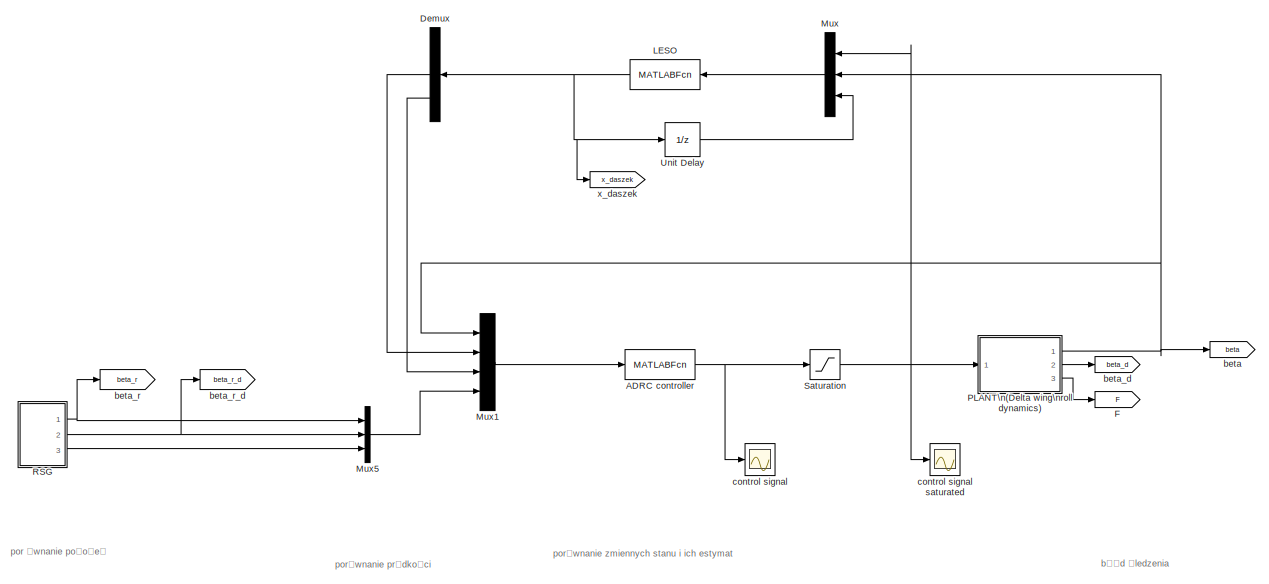
[diagram: root canvas - part 1/2, full width, top band]
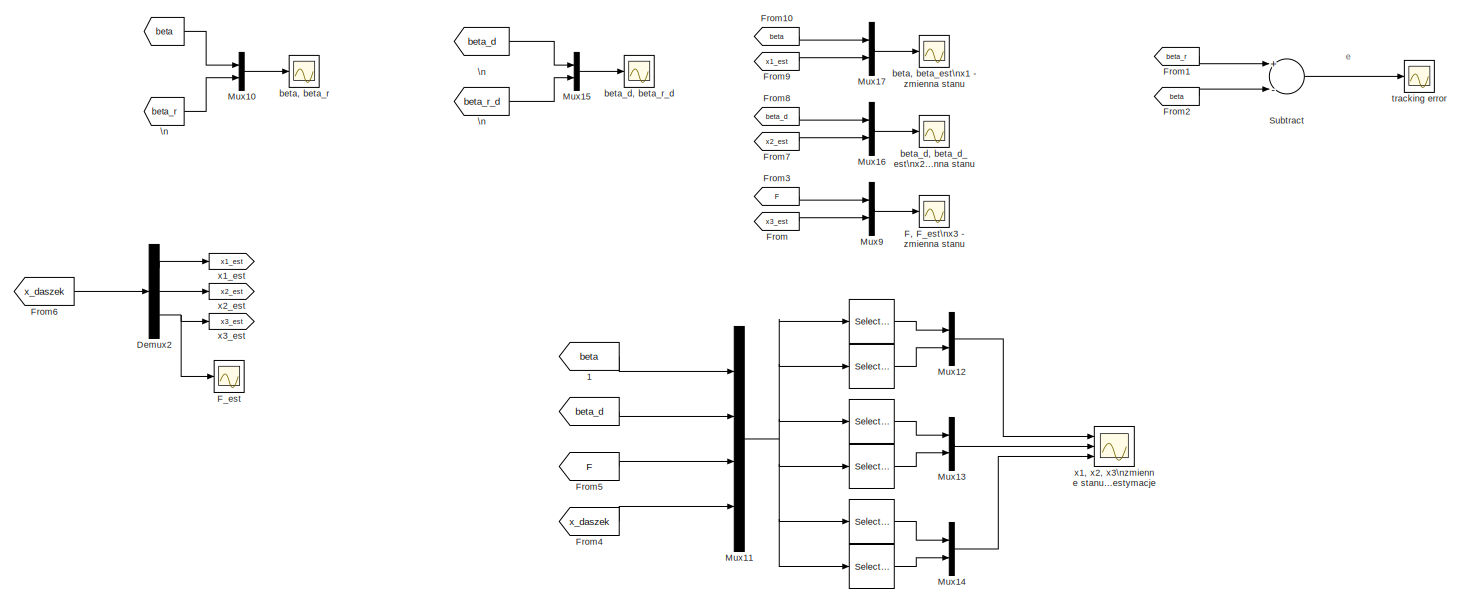
[diagram: root canvas - part 2/2, full width, bottom band]
MODEL DeltaWingPlantADRC_descrete
KIND model
BLOCK [Selector]  
  Commented = on
  IndexOptions = Index vector (dialog)
  Indices = [2]
  InputPortWidth = 6
  OutputSizes = 1
  Ports = [1, 1]
  SID = 127
BLOCK [Selector]        
  Commented = on
  IndexOptions = Index vector (dialog)
  Indices = [4]
  InputPortWidth = 6
  OutputSizes = 1
  Ports = [1, 1]
  SID = 126
BLOCK [Selector]          
  Commented = on
  IndexOptions = Index vector (dialog)
  Indices = [1]
  InputPortWidth = 6
  OutputSizes = 1
  Ports = [1, 1]
  SID = 125
BLOCK [From]                 
  GotoTag = beta
  SID = 118
BLOCK [From]                          
  Commented = on
  GotoTag = beta_d
  SID = 135
BLOCK [Selector]                             
  Commented = on
  IndexOptions = Index vector (dialog)
  Indices = [5]
  InputPortWidth = 6
  OutputSizes = 1
  Ports = [1, 1]
  SID = 128
BLOCK [Selector]                               
  Commented = on
  IndexOptions = Index vector (dialog)
  Indices = [6]
  InputPortWidth = 6
  OutputSizes = 1
  Ports = [1, 1]
  SID = 130
BLOCK [Selector]                                      
  Commented = on
  IndexOptions = Index vector (dialog)
  Indices = [3]
  InputPortWidth = 6
  OutputSizes = 1
  Ports = [1, 1]
  SID = 129
BLOCK [From]                                                        \n
  GotoTag = beta_d
  SID = 155
BLOCK [From]                 1
  Commented = on
  GotoTag = beta
  SID = 137
BLOCK [MATLABFcn] ADRC controller
  MATLABFcn = controller
  Ports = [1, 1]
  SID = 45
BLOCK [Demux] Demux
  DisplayOption = bar
  Outputs = 3
  Ports = [1, 3]
  SID = 53
BLOCK [Demux] Demux2
  DisplayOption = bar
  Outputs = 3
  Ports = [1, 3]
  SID = 143
BLOCK [Goto] F
  GotoTag = F
  SID = 111
BLOCK [Scope] F, F_est\nx3 - zmienna stanu
  Floating = off
  NumInputPorts = 1
  Ports = [1]
  SID = 115
  ScopeSpecificationString = Simulink.scopes.TimeScopeBlockCfg('CurrentConfiguration', extmgr.ConfigurationSet(extmgr.Configuration('Core','General UI',true),extmgr.Configuration('Core','Source UI',true),extmgr.Configuration('Sources','WiredSimulink',true,'DataLoggingVariableName','ScopeData9','DataLoggingSaveFormat','StructureWithTime','DataLoggingDecimation','1','DataLoggingDecimateData',true),extmgr.Configuration('Visuals'...<+1704ch>
BLOCK [Scope] F_est
  Floating = off
  NumInputPorts = 1
  Ports = [1]
  SID = 148
  ScopeSpecificationString = Simulink.scopes.TimeScopeBlockCfg('CurrentConfiguration', extmgr.ConfigurationSet(extmgr.Configuration('Core','General UI',true),extmgr.Configuration('Core','Source UI',true),extmgr.Configuration('Sources','WiredSimulink',true,'DataLoggingVariableName','ScopeData5','DataLoggingSaveFormat','StructureWithTime','DataLoggingDecimation','1','DataLoggingDecimateData',true),extmgr.Configuration('Visuals'...<+1673ch>
BLOCK [From] From
  GotoTag = x3_est
  SID = 147
BLOCK [From] From1
  GotoTag = beta_r
  SID = 100
BLOCK [From] From10
  GotoTag = beta
  SID = 162
BLOCK [From] From2
  GotoTag = beta
  SID = 101
BLOCK [From] From3
  GotoTag = F
  SID = 112
BLOCK [From] From4
  Commented = on
  GotoTag = x_daszek
  SID = 134
BLOCK [From] From5
  Commented = on
  GotoTag = F
  SID = 136
BLOCK [From] From6
  GotoTag = x_daszek
  SID = 142
BLOCK [From] From7
  GotoTag = x2_est
  SID = 157
BLOCK [From] From8
  GotoTag = beta_d
  SID = 158
BLOCK [From] From9
  GotoTag = x1_est
  SID = 161
BLOCK [MATLABFcn] LESO
  MATLABFcn = LESO_descrete
  OutputDimensions = 3
  Ports = [1, 1]
  SID = 49
BLOCK [Mux] Mux
  DisplayOption = bar
  Inputs = 3
  Ports = [3, 1]
  SID = 50
BLOCK [Mux] Mux1
  DisplayOption = bar
  Ports = [4, 1]
  SID = 48
BLOCK [Mux] Mux10
  DisplayOption = bar
  Inputs = 2
  Ports = [2, 1]
  SID = 119
BLOCK [Mux] Mux11
  Commented = on
  DisplayOption = bar
  Ports = [4, 1]
  SID = 133
BLOCK [Mux] Mux12
  Commented = on
  DisplayOption = bar
  Inputs = 2
  Ports = [2, 1]
  SID = 138
BLOCK [Mux] Mux13
  Commented = on
  DisplayOption = bar
  Inputs = 2
  Ports = [2, 1]
  SID = 139
BLOCK [Mux] Mux14
  Commented = on
  DisplayOption = bar
  Inputs = 2
  Ports = [2, 1]
  SID = 140
BLOCK [Mux] Mux15
  DisplayOption = bar
  Inputs = 2
  Ports = [2, 1]
  SID = 152
BLOCK [Mux] Mux16
  DisplayOption = bar
  Inputs = 2
  Ports = [2, 1]
  SID = 159
BLOCK [Mux] Mux17
  DisplayOption = bar
  Inputs = 2
  Ports = [2, 1]
  SID = 163
BLOCK [Mux] Mux5
  DisplayOption = bar
  Inputs = 3
  Ports = [3, 1]
  SID = 1
BLOCK [Mux] Mux9
  DisplayOption = bar
  Inputs = 2
  Ports = [2, 1]
  SID = 114
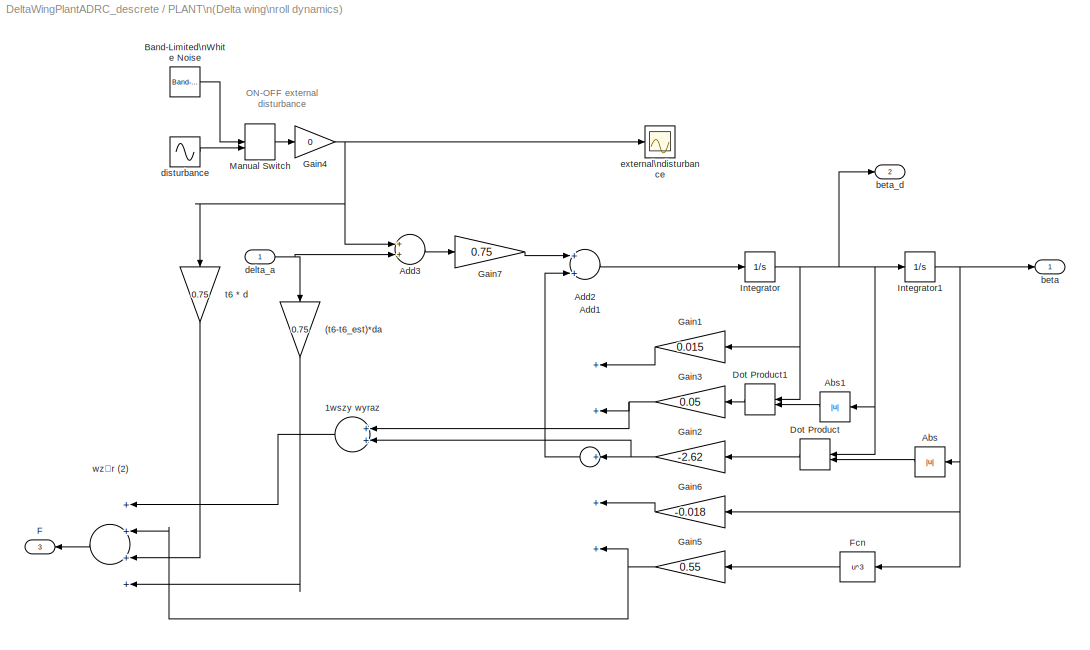
BLOCK [SubSystem] PLANT\n(Delta wing\nroll dynamics)
  Ports = [1, 3]
  RequestExecContextInheritance = off
  SID = 2
BLOCK [Gain] PLANT\n(Delta wing\nroll dynamics)/(t6-t6_est)*da
  Gain = 0.75
  OutDataTypeStr = Inherit: Inherit via internal rule
  ParamDataTypeStr = Inherit: Inherit via internal rule
  SID = 109
  SaturateOnIntegerOverflow = off
BLOCK [Sum] PLANT\n(Delta wing\nroll dynamics)/1wszy wyraz
  InputSameDT = off
  OutDataTypeStr = Inherit: Inherit via internal rule
  Ports = [2, 1]
  SID = 107
  SaturateOnIntegerOverflow = off
BLOCK [Abs] PLANT\n(Delta wing\nroll dynamics)/Abs
  SID = 4
  SaturateOnIntegerOverflow = off
BLOCK [Abs] PLANT\n(Delta wing\nroll dynamics)/Abs1
  SID = 5
  SaturateOnIntegerOverflow = off
BLOCK [Sum] PLANT\n(Delta wing\nroll dynamics)/Add1
  InputSameDT = off
  Inputs = +++++
  OutDataTypeStr = Inherit: Inherit via internal rule
  Ports = [5, 1]
  SID = 6
  SaturateOnIntegerOverflow = off
BLOCK [Sum] PLANT\n(Delta wing\nroll dynamics)/Add2
  InputSameDT = off
  OutDataTypeStr = Inherit: Inherit via internal rule
  Ports = [2, 1]
  SID = 7
  SaturateOnIntegerOverflow = off
BLOCK [Sum] PLANT\n(Delta wing\nroll dynamics)/Add3
  InputSameDT = off
  OutDataTypeStr = Inherit: Inherit via internal rule
  Ports = [2, 1]
  SID = 8
  SaturateOnIntegerOverflow = off
BLOCK [Reference] PLANT\n(Delta wing\nroll dynamics)/Band-Limited\nWhite Noise  REF=simulink/Sources/Band-Limited\nWhite Noise
  Cov = [0.1*15]
  Ports = [0, 1]
  SID = 9
  SourceBlock = simulink/Sources/Band-Limited\nWhite Noise
  SourceProductBaseCode = SL
  SourceProductName = Simulink
  SourceType = Band-Limited White Noise.
  Ts = 15
  VectorParams1D = on
  seed = [23341]
BLOCK [DotProduct] PLANT\n(Delta wing\nroll dynamics)/Dot Product
  OutDataTypeStr = Inherit: Inherit via internal rule
  SID = 10
BLOCK [DotProduct] PLANT\n(Delta wing\nroll dynamics)/Dot Product1
  OutDataTypeStr = Inherit: Inherit via internal rule
  SID = 11
BLOCK [Outport] PLANT\n(Delta wing\nroll dynamics)/F
  IconDisplay = Port number
  Port = 3
  SID = 110
BLOCK [Fcn] PLANT\n(Delta wing\nroll dynamics)/Fcn
  Expr = u^3
  SID = 12
BLOCK [Gain] PLANT\n(Delta wing\nroll dynamics)/Gain1
  Gain = 0.015
  OutDataTypeStr = Inherit: Inherit via internal rule
  ParamDataTypeStr = Inherit: Inherit via internal rule
  SID = 13
  SaturateOnIntegerOverflow = off
BLOCK [Gain] PLANT\n(Delta wing\nroll dynamics)/Gain2
  Gain = -2.62
  OutDataTypeStr = Inherit: Inherit via internal rule
  ParamDataTypeStr = Inherit: Inherit via internal rule
  SID = 14
  SaturateOnIntegerOverflow = off
BLOCK [Gain] PLANT\n(Delta wing\nroll dynamics)/Gain3
  Gain = 0.05
  OutDataTypeStr = Inherit: Inherit via internal rule
  ParamDataTypeStr = Inherit: Inherit via internal rule
  SID = 15
  SaturateOnIntegerOverflow = off
BLOCK [Gain] PLANT\n(Delta wing\nroll dynamics)/Gain4
  Gain = 0
  OutDataTypeStr = Inherit: Inherit via internal rule
  ParamDataTypeStr = Inherit: Inherit via internal rule
  SID = 16
  SaturateOnIntegerOverflow = off
BLOCK [Gain] PLANT\n(Delta wing\nroll dynamics)/Gain5
  Gain = 0.55
  OutDataTypeStr = Inherit: Inherit via internal rule
  ParamDataTypeStr = Inherit: Inherit via internal rule
  SID = 17
  SaturateOnIntegerOverflow = off
BLOCK [Gain] PLANT\n(Delta wing\nroll dynamics)/Gain6
  Gain = -0.018
  OutDataTypeStr = Inherit: Inherit via internal rule
  ParamDataTypeStr = Inherit: Inherit via internal rule
  SID = 18
  SaturateOnIntegerOverflow = off
BLOCK [Gain] PLANT\n(Delta wing\nroll dynamics)/Gain7
  Gain = 0.75
  OutDataTypeStr = Inherit: Inherit via internal rule
  ParamDataTypeStr = Inherit: Inherit via internal rule
  SID = 19
  SaturateOnIntegerOverflow = off
BLOCK [Integrator] PLANT\n(Delta wing\nroll dynamics)/Integrator
  InitialCondition = betap0
  Ports = [1, 1]
  SID = 20
BLOCK [Integrator] PLANT\n(Delta wing\nroll dynamics)/Integrator1
  InitialCondition = beta0
  Ports = [1, 1]
  SID = 21
BLOCK [ManualSwitch] PLANT\n(Delta wing\nroll dynamics)/Manual Switch
  CurrentSetting = 0
  SID = 22
BLOCK [Outport] PLANT\n(Delta wing\nroll dynamics)/beta
  IconDisplay = Port number
  SID = 25
BLOCK [Outport] PLANT\n(Delta wing\nroll dynamics)/beta_d
  IconDisplay = Port number
  Port = 2
  SID = 123
BLOCK [Inport] PLANT\n(Delta wing\nroll dynamics)/delta_a
  IconDisplay = Port number
  SID = 3
BLOCK [Sin] PLANT\n(Delta wing\nroll dynamics)/disturbance
  Amplitude = 1.5
  Ports = [0, 1]
  SID = 23
  SampleTime = 0
BLOCK [Scope] PLANT\n(Delta wing\nroll dynamics)/external\ndisturbance
  Floating = off
  NumInputPorts = 1
  Ports = [1]
  SID = 24
  ScopeSpecificationString = Simulink.scopes.TimeScopeBlockCfg('CurrentConfiguration', extmgr.ConfigurationSet(extmgr.Configuration('Core','General UI',true),extmgr.Configuration('Core','Source UI',true),extmgr.Configuration('Sources','WiredSimulink',true,'DataLoggingVariableName','ScopeData3','DataLoggingSaveFormat','StructureWithTime','DataLoggingDecimation','1','DataLoggingDecimateData',true),extmgr.Configuration('Visuals'...<+1668ch>
BLOCK [Gain] PLANT\n(Delta wing\nroll dynamics)/t6 * d
  Gain = 0.75
  OutDataTypeStr = Inherit: Inherit via internal rule
  ParamDataTypeStr = Inherit: Inherit via internal rule
  SID = 108
  SaturateOnIntegerOverflow = off
BLOCK [Sum] PLANT\n(Delta wing\nroll dynamics)/wzór (2)
  InputSameDT = off
  Inputs = ++++
  OutDataTypeStr = Inherit: Inherit via internal rule
  Ports = [4, 1]
  SID = 106
  SaturateOnIntegerOverflow = off
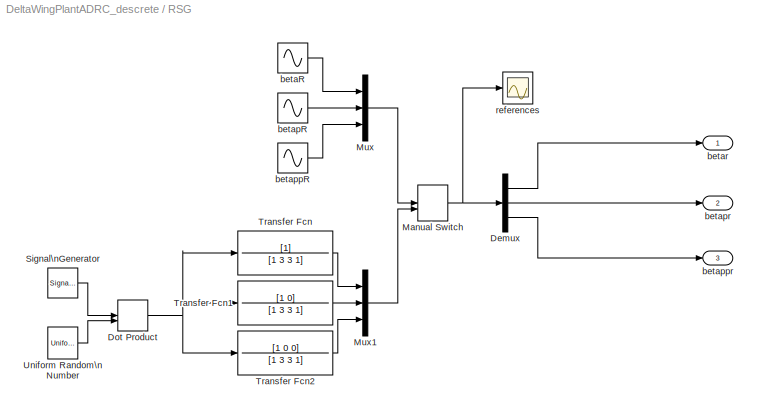
BLOCK [SubSystem] RSG
  Ports = [0, 3]
  RequestExecContextInheritance = off
  SID = 27
BLOCK [Demux] RSG/Demux
  DisplayOption = bar
  Outputs = 3
  Ports = [1, 3]
  SID = 28
BLOCK [DotProduct] RSG/Dot Product
  OutDataTypeStr = Inherit: Inherit via internal rule
  SID = 29
BLOCK [ManualSwitch] RSG/Manual Switch
  SID = 30
BLOCK [Mux] RSG/Mux
  DisplayOption = bar
  Inputs = 3
  Ports = [3, 1]
  SID = 31
BLOCK [Mux] RSG/Mux1
  DisplayOption = bar
  Inputs = 3
  Ports = [3, 1]
  SID = 32
BLOCK [SignalGenerator] RSG/Signal\nGenerator
  Frequency = 0.05
  Ports = [0, 1]
  SID = 33
  WaveForm = square
BLOCK [TransferFcn] RSG/Transfer Fcn
  Denominator = [1 3 3 1]
  SID = 34
BLOCK [TransferFcn] RSG/Transfer Fcn1
  Denominator = [1 3 3 1]
  Numerator = [1 0]
  SID = 35
BLOCK [TransferFcn] RSG/Transfer Fcn2
  Denominator = [1 3 3 1]
  Numerator = [1 0 0]
  SID = 36
BLOCK [UniformRandomNumber] RSG/Uniform Random\nNumber
  Maximum = 0.8*pi/2
  Minimum = -0.8*pi/2
  SID = 37
  SampleTime = 10
BLOCK [Sin] RSG/betaR
  Frequency = 0.5
  Ports = [0, 1]
  SID = 38
  SampleTime = 0
BLOCK [Sin] RSG/betapR
  Amplitude = 0.5
  Frequency = 0.5
  Phase = pi/2
  Ports = [0, 1]
  SID = 39
  SampleTime = 0
BLOCK [Sin] RSG/betappR
  Amplitude = -1*0.5*0.5
  Frequency = 0.5
  Ports = [0, 1]
  SID = 40
  SampleTime = 0
BLOCK [Outport] RSG/betappr
  IconDisplay = Port number
  Port = 3
  SID = 44
BLOCK [Outport] RSG/betapr
  IconDisplay = Port number
  Port = 2
  SID = 43
BLOCK [Outport] RSG/betar
  IconDisplay = Port number
  SID = 42
BLOCK [Scope] RSG/references
  Floating = off
  NumInputPorts = 1
  Ports = [1]
  SID = 41
  ScopeSpecificationString = Simulink.scopes.TimeScopeBlockCfg('CurrentConfiguration', extmgr.ConfigurationSet(extmgr.Configuration('Core','General UI',true),extmgr.Configuration('Core','Source UI',true),extmgr.Configuration('Sources','WiredSimulink',true,'DataLoggingSaveFormat','StructureWithTime','DataLoggingDecimation','1','DataLoggingDecimateData',true),extmgr.Configuration('Visuals','Time Domain',true,'SerializedDisplays...<+1634ch>
BLOCK [Saturate] Saturation
  InputPortMap = u0
  LowerLimit = -um
  Ports = [1, 1]
  SID = 46
  UpperLimit = um
BLOCK [Sum] Subtract
  InputSameDT = off
  Inputs = +-
  OutDataTypeStr = Inherit: Inherit via internal rule
  Ports = [2, 1]
  SID = 102
  SaturateOnIntegerOverflow = off
BLOCK [UnitDelay] Unit Delay
  HasFrameUpgradeWarning = on
  SID = 170
  SampleTime = Ta
BLOCK [From] \n  
  GotoTag = beta_r_d
  SID = 154
BLOCK [From] \n   
  GotoTag = beta_r
  SID = 117
BLOCK [Goto] beta
  GotoTag = beta
  SID = 96
BLOCK [Scope] beta, beta_est\nx1 - zmienna stanu
  Floating = off
  NumInputPorts = 1
  Ports = [1]
  SID = 160
  ScopeSpecificationString = Simulink.scopes.TimeScopeBlockCfg('CurrentConfiguration', extmgr.ConfigurationSet(extmgr.Configuration('Core','General UI',true),extmgr.Configuration('Core','Source UI',true),extmgr.Configuration('Sources','WiredSimulink',true,'DataLoggingVariableName','ScopeData13','DataLoggingSaveFormat','StructureWithTime','DataLoggingDecimation','1','DataLoggingDecimateData',true),extmgr.Configuration('Visuals...<+1705ch>
BLOCK [Scope] beta, beta_r
  Floating = off
  NumInputPorts = 1
  Ports = [1]
  SID = 120
  ScopeSpecificationString = Simulink.scopes.TimeScopeBlockCfg('CurrentConfiguration', extmgr.ConfigurationSet(extmgr.Configuration('Core','General UI',true),extmgr.Configuration('Core','Source UI',true),extmgr.Configuration('Sources','WiredSimulink',true,'DataLoggingVariableName','ScopeData10','DataLoggingSaveFormat','StructureWithTime','DataLoggingDecimation','1','DataLoggingDecimateData',true),extmgr.Configuration('Visuals...<+1684ch>
BLOCK [Goto] beta_d
  GotoTag = beta_d
  SID = 124
BLOCK [Scope] beta_d, beta_d_est\nx2 - zmienna stanu
  Floating = off
  NumInputPorts = 1
  Ports = [1]
  SID = 156
  ScopeSpecificationString = Simulink.scopes.TimeScopeBlockCfg('CurrentConfiguration', extmgr.ConfigurationSet(extmgr.Configuration('Core','General UI',true),extmgr.Configuration('Core','Source UI',true),extmgr.Configuration('Sources','WiredSimulink',true,'DataLoggingVariableName','ScopeData7','DataLoggingSaveFormat','StructureWithTime','DataLoggingDecimation','1','DataLoggingDecimateData',true),extmgr.Configuration('Visuals'...<+1758ch>
BLOCK [Scope] beta_d, beta_r_d
  Floating = off
  NumInputPorts = 1
  Ports = [1]
  SID = 153
  ScopeSpecificationString = Simulink.scopes.TimeScopeBlockCfg('CurrentConfiguration', extmgr.ConfigurationSet(extmgr.Configuration('Core','General UI',true),extmgr.Configuration('Core','Source UI',true),extmgr.Configuration('Sources','WiredSimulink',true,'DataLoggingVariableName','ScopeData6','DataLoggingSaveFormat','StructureWithTime','DataLoggingDecimation','1','DataLoggingDecimateData',true),extmgr.Configuration('Visuals'...<+1699ch>
BLOCK [Goto] beta_r
  GotoTag = beta_r
  SID = 97
BLOCK [Goto] beta_r_d
  GotoTag = beta_r_d
  SID = 98
BLOCK [Scope] control signal
  Floating = off
  NumInputPorts = 1
  Ports = [1]
  SID = 47
  ScopeSpecificationString = Simulink.scopes.TimeScopeBlockCfg('CurrentConfiguration', extmgr.ConfigurationSet(extmgr.Configuration('Core','General UI',true),extmgr.Configuration('Core','Source UI',true),extmgr.Configuration('Sources','WiredSimulink',true,'DataLoggingVariableName','ScopeData8','DataLoggingSaveFormat','StructureWithTime','DataLoggingDecimation','1','DataLoggingDecimateData',true),extmgr.Configuration('Visuals'...<+1674ch>
BLOCK [Scope] control signal saturated
  Floating = off
  NumInputPorts = 1
  Ports = [1]
  SID = 63
  ScopeSpecificationString = Simulink.scopes.TimeScopeBlockCfg('CurrentConfiguration', extmgr.ConfigurationSet(extmgr.Configuration('Core','General UI',true),extmgr.Configuration('Core','Source UI',true),extmgr.Configuration('Sources','WiredSimulink',true,'DataLoggingVariableName','ScopeData1','DataLoggingSaveFormat','StructureWithTime','DataLoggingDecimation','1','DataLoggingDecimateData',true),extmgr.Configuration('Visuals'...<+1669ch>
BLOCK [Scope] tracking error
  Floating = off
  NumInputPorts = 1
  Ports = [1]
  SID = 103
  ScopeSpecificationString = Simulink.scopes.TimeScopeBlockCfg('CurrentConfiguration', extmgr.ConfigurationSet(extmgr.Configuration('Core','General UI',true),extmgr.Configuration('Core','Source UI',true),extmgr.Configuration('Sources','WiredSimulink',true,'DataLoggingVariableName','ScopeData8','DataLoggingSaveFormat','StructureWithTime','DataLoggingDecimation','1','DataLoggingDecimateData',true),extmgr.Configuration('Visuals'...<+1665ch>
BLOCK [Scope] x1, x2, x3\nzmienne stanu, ich estymacje
  Commented = on
  Floating = off
  NumInputPorts = 3
  Ports = [3]
  SID = 141
  ScopeSpecificationString = Simulink.scopes.TimeScopeBlockCfg('CurrentConfiguration', extmgr.ConfigurationSet(extmgr.Configuration('Core','General UI',true),extmgr.Configuration('Core','Source UI',true),extmgr.Configuration('Sources','WiredSimulink',true,'DataLoggingVariableName','ScopeData12','DataLoggingSaveFormat','StructureWithTime','DataLoggingDecimation','1','DataLoggingDecimateData',true),extmgr.Configuration('Visuals...<+2210ch>
BLOCK [Goto] x1_est
  GotoTag = x1_est
  SID = 144
BLOCK [Goto] x2_est
  GotoTag = x2_est
  SID = 145
BLOCK [Goto] x3_est
  GotoTag = x3_est
  SID = 146
BLOCK [Goto] x_daszek
  GotoTag = x_daszek
  SID = 93
ANNOTATION (root): b³¹d œledzenia
ANNOTATION (root): e
ANNOTATION (root): por ównanie po³o¿eñ
ANNOTATION (root): porównanie prêdkoœci
ANNOTATION (root): porównanie zmiennych stanu i ich estymat
ANNOTATION PLANT\n(Delta wing\nroll dynamics): ON-OFF external\ndisturbance
LINE                                                        \n:1 -> Mux15:1
LINE                                      :1 -> Mux14:1
LINE                               :1 -> Mux14:2
LINE                             :1 -> Mux13:2
LINE                          :1 -> Mux11:2
LINE                 1:1 -> Mux11:1
LINE                 :1 -> Mux10:1
LINE          :1 -> Mux12:1
LINE        :1 -> Mux12:2
LINE  :1 -> Mux13:1
NET ADRC controller:1 -> Saturation:1, control signal:1
LINE Demux2:1 -> x1_est:1
LINE Demux2:2 -> x2_est:1
NET Demux2:3 -> F_est:1, x3_est:1
LINE Demux:2 -> Mux1:2
LINE Demux:3 -> Mux1:3
LINE From10:1 -> Mux17:1
LINE From1:1 -> Subtract:1
LINE From2:1 -> Subtract:2
LINE From3:1 -> Mux9:1
LINE From4:1 -> Mux11:4
LINE From5:1 -> Mux11:3
LINE From6:1 -> Demux2:1
LINE From7:1 -> Mux16:2
LINE From8:1 -> Mux16:1
LINE From9:1 -> Mux17:2
LINE From:1 -> Mux9:2
NET LESO:1 -> Demux:1, Unit Delay:1, x_daszek:1
LINE Mux10:1 -> beta, beta_r:1
NET Mux11:1 ->                                      :1,                               :1,                             :1,          :1,        :1,  :1
LINE Mux12:1 -> x1, x2, x3\nzmienne stanu, ich estymacje:1
LINE Mux13:1 -> x1, x2, x3\nzmienne stanu, ich estymacje:2
LINE Mux14:1 -> x1, x2, x3\nzmienne stanu, ich estymacje:3
LINE Mux15:1 -> beta_d, beta_r_d:1
LINE Mux16:1 -> beta_d, beta_d_est\nx2 - zmienna stanu:1
LINE Mux17:1 -> beta, beta_est\nx1 - zmienna stanu:1
LINE Mux1:1 -> ADRC controller:1
LINE Mux5:1 -> Mux1:4
LINE Mux9:1 -> F, F_est\nx3 - zmienna stanu:1
LINE Mux:1 -> LESO:1
LINE PLANT\n(Delta wing\nroll dynamics)/(t6-t6_est)*da:1 -> PLANT\n(Delta wing\nroll dynamics)/wzór (2):4
LINE PLANT\n(Delta wing\nroll dynamics)/1wszy wyraz:1 -> PLANT\n(Delta wing\nroll dynamics)/wzór (2):1
LINE PLANT\n(Delta wing\nroll dynamics)/Abs1:1 -> PLANT\n(Delta wing\nroll dynamics)/Dot Product1:2
LINE PLANT\n(Delta wing\nroll dynamics)/Abs:1 -> PLANT\n(Delta wing\nroll dynamics)/Dot Product:2
LINE PLANT\n(Delta wing\nroll dynamics)/Add1:1 -> PLANT\n(Delta wing\nroll dynamics)/Add2:2
LINE PLANT\n(Delta wing\nroll dynamics)/Add2:1 -> PLANT\n(Delta wing\nroll dynamics)/Integrator:1
LINE PLANT\n(Delta wing\nroll dynamics)/Add3:1 -> PLANT\n(Delta wing\nroll dynamics)/Gain7:1
LINE PLANT\n(Delta wing\nroll dynamics)/Band-Limited\nWhite Noise:1 -> PLANT\n(Delta wing\nroll dynamics)/Manual Switch:1
LINE PLANT\n(Delta wing\nroll dynamics)/Dot Product1:1 -> PLANT\n(Delta wing\nroll dynamics)/Gain3:1
LINE PLANT\n(Delta wing\nroll dynamics)/Dot Product:1 -> PLANT\n(Delta wing\nroll dynamics)/Gain2:1
LINE PLANT\n(Delta wing\nroll dynamics)/Fcn:1 -> PLANT\n(Delta wing\nroll dynamics)/Gain5:1
LINE PLANT\n(Delta wing\nroll dynamics)/Gain1:1 -> PLANT\n(Delta wing\nroll dynamics)/Add1:1
NET PLANT\n(Delta wing\nroll dynamics)/Gain2:1 -> PLANT\n(Delta wing\nroll dynamics)/1wszy wyraz:2, PLANT\n(Delta wing\nroll dynamics)/Add1:3
NET PLANT\n(Delta wing\nroll dynamics)/Gain3:1 -> PLANT\n(Delta wing\nroll dynamics)/1wszy wyraz:1, PLANT\n(Delta wing\nroll dynamics)/Add1:2
NET PLANT\n(Delta wing\nroll dynamics)/Gain4:1 -> PLANT\n(Delta wing\nroll dynamics)/Add3:1, PLANT\n(Delta wing\nroll dynamics)/external\ndisturbance:1, PLANT\n(Delta wing\nroll dynamics)/t6 * d:1
NET PLANT\n(Delta wing\nroll dynamics)/Gain5:1 -> PLANT\n(Delta wing\nroll dynamics)/Add1:5, PLANT\n(Delta wing\nroll dynamics)/wzór (2):2
LINE PLANT\n(Delta wing\nroll dynamics)/Gain6:1 -> PLANT\n(Delta wing\nroll dynamics)/Add1:4
LINE PLANT\n(Delta wing\nroll dynamics)/Gain7:1 -> PLANT\n(Delta wing\nroll dynamics)/Add2:1
NET PLANT\n(Delta wing\nroll dynamics)/Integrator1:1 -> PLANT\n(Delta wing\nroll dynamics)/Abs:1, PLANT\n(Delta wing\nroll dynamics)/Fcn:1, PLANT\n(Delta wing\nroll dynamics)/Gain6:1, PLANT\n(Delta wing\nroll dynamics)/beta:1
NET PLANT\n(Delta wing\nroll dynamics)/Integrator:1 -> PLANT\n(Delta wing\nroll dynamics)/Abs1:1, PLANT\n(Delta wing\nroll dynamics)/Dot Product1:1, PLANT\n(Delta wing\nroll dynamics)/Dot Product:1, PLANT\n(Delta wing\nroll dynamics)/Gain1:1, PLANT\n(Delta wing\nroll dynamics)/Integrator1:1, PLANT\n(Delta wing\nroll dynamics)/beta_d:1
LINE PLANT\n(Delta wing\nroll dynamics)/Manual Switch:1 -> PLANT\n(Delta wing\nroll dynamics)/Gain4:1
NET PLANT\n(Delta wing\nroll dynamics)/delta_a:1 -> PLANT\n(Delta wing\nroll dynamics)/(t6-t6_est)*da:1, PLANT\n(Delta wing\nroll dynamics)/Add3:2
LINE PLANT\n(Delta wing\nroll dynamics)/disturbance:1 -> PLANT\n(Delta wing\nroll dynamics)/Manual Switch:2
LINE PLANT\n(Delta wing\nroll dynamics)/t6 * d:1 -> PLANT\n(Delta wing\nroll dynamics)/wzór (2):3
LINE PLANT\n(Delta wing\nroll dynamics)/wzór (2):1 -> PLANT\n(Delta wing\nroll dynamics)/F:1
NET PLANT\n(Delta wing\nroll dynamics):1 -> Mux1:1, Mux:2, beta:1
LINE PLANT\n(Delta wing\nroll dynamics):2 -> beta_d:1
LINE PLANT\n(Delta wing\nroll dynamics):3 -> F:1
LINE RSG/Demux:1 -> RSG/betar:1
LINE RSG/Demux:2 -> RSG/betapr:1
LINE RSG/Demux:3 -> RSG/betappr:1
NET RSG/Dot Product:1 -> RSG/Transfer Fcn1:1, RSG/Transfer Fcn2:1, RSG/Transfer Fcn:1
NET RSG/Manual Switch:1 -> RSG/Demux:1, RSG/references:1
LINE RSG/Mux1:1 -> RSG/Manual Switch:2
LINE RSG/Mux:1 -> RSG/Manual Switch:1
LINE RSG/Signal\nGenerator:1 -> RSG/Dot Product:1
LINE RSG/Transfer Fcn1:1 -> RSG/Mux1:2
LINE RSG/Transfer Fcn2:1 -> RSG/Mux1:3
LINE RSG/Transfer Fcn:1 -> RSG/Mux1:1
LINE RSG/Uniform Random\nNumber:1 -> RSG/Dot Product:2
LINE RSG/betaR:1 -> RSG/Mux:1
LINE RSG/betapR:1 -> RSG/Mux:2
LINE RSG/betappR:1 -> RSG/Mux:3
NET RSG:1 -> Mux5:1, beta_r:1
NET RSG:2 -> Mux5:2, beta_r_d:1
LINE RSG:3 -> Mux5:3
NET Saturation:1 -> Mux:1, PLANT\n(Delta wing\nroll dynamics):1, control signal saturated:1
LINE Subtract:1 -> tracking error:1
LINE Unit Delay:1 -> Mux:3
LINE \n   :1 -> Mux10:2
LINE \n  :1 -> Mux15:2
note: NET lines group one-source signal fan-out (src -> all destinations, sorted); 1:1 wires keep LINE
